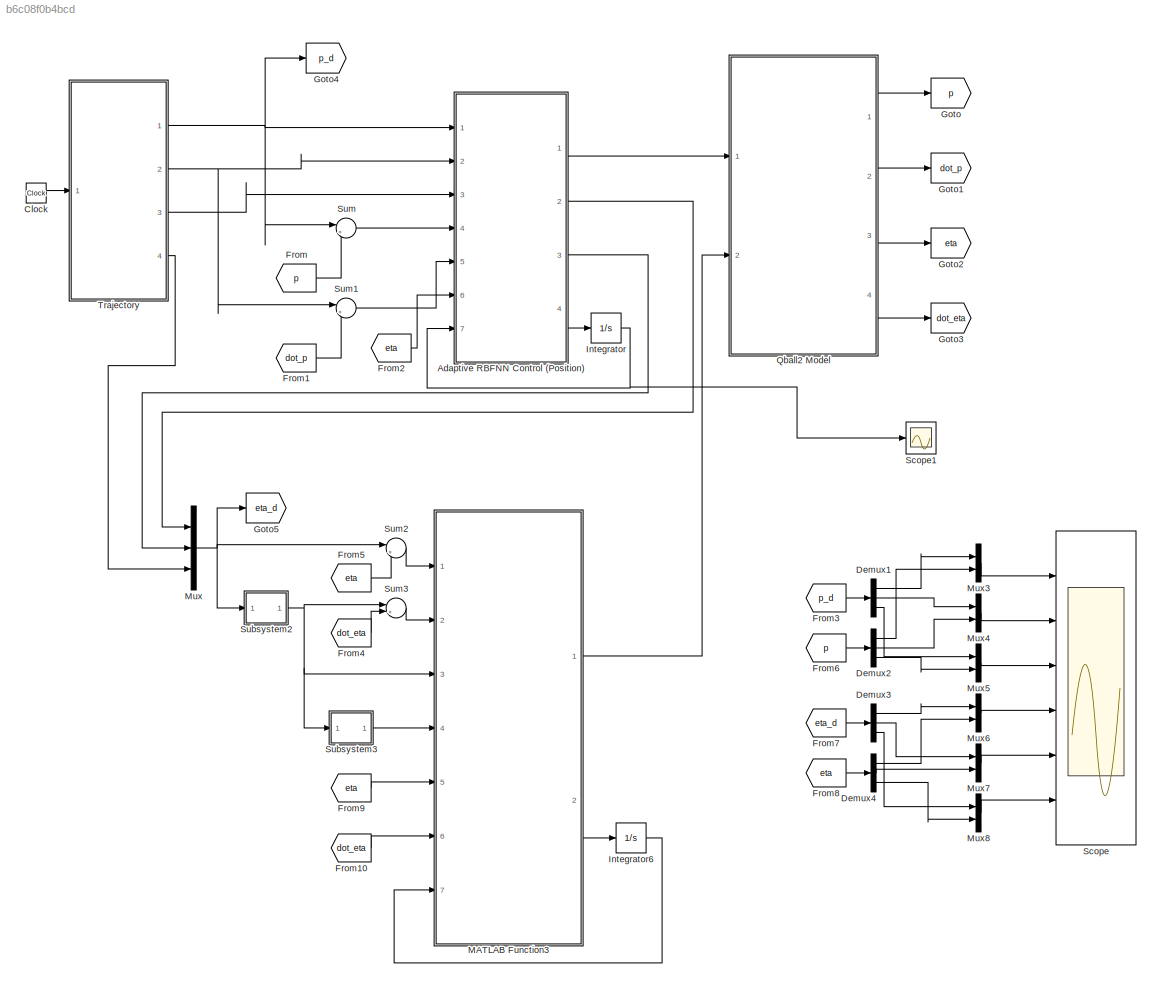
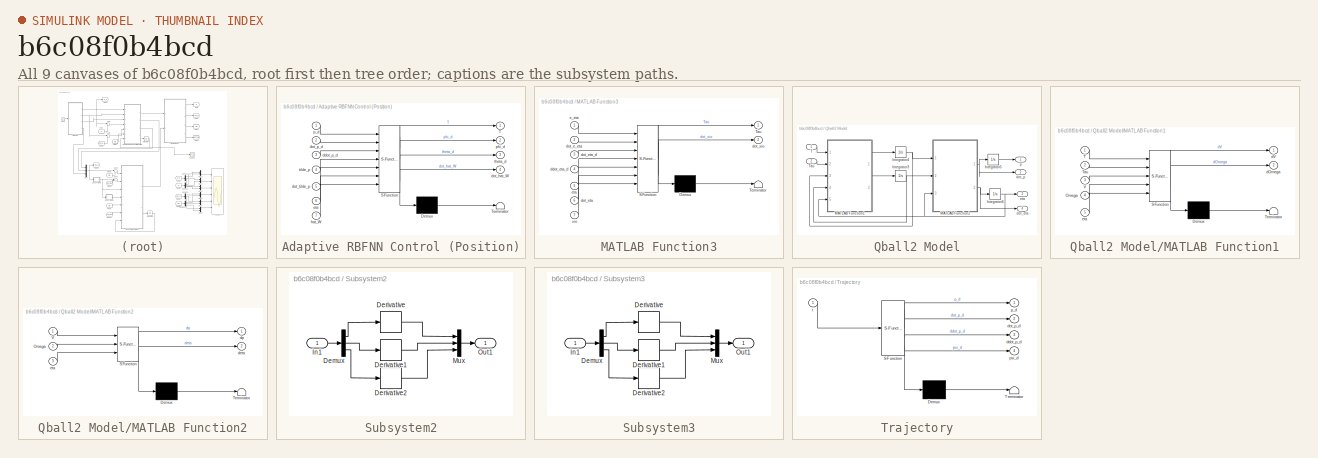
[diagram: thumbnail index - all 9 canvases of the model, root first then tree order]
MODEL slx_b6c08f0b4bcd
KIND model
CONFIG AbsTol = auto
CONFIG EnableMultiTasking = off
CONFIG FixedStep = 1e-3
CONFIG MaxStep = auto
CONFIG MinStep = auto
CONFIG RelTol = 1e-3
CONFIG SampleTimeConstraint = Unconstrained
CONFIG Solver = FixedStepAuto
CONFIG SolverName = FixedStepAuto
CONFIG StartTime = 0.0
CONFIG StopTime = 60
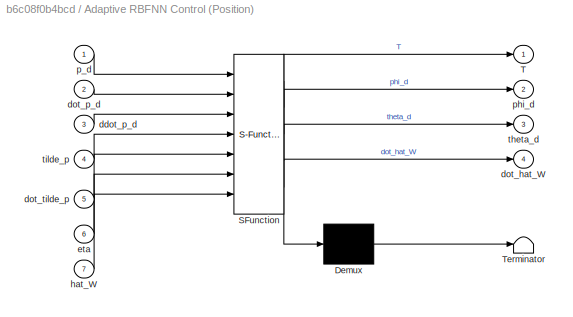
BLOCK [SubSystem] Adaptive RBFNN Control (Position)
  ErrorFcn = Stateflow.Translate.translate
  PermitHierarchicalResolution = ExplicitOnly
  Ports = [7, 4]
  RequestExecContextInheritance = off
  SFBlockType = MATLAB Function
  TreatAsAtomicUnit = on
BLOCK [Demux] Adaptive RBFNN Control (Position)/ Demux 
  Outputs = 1
  Ports = [1, 1]
BLOCK [S-Function] Adaptive RBFNN Control (Position)/ SFunction 
  EnableBusSupport = on
  FunctionName = sf_sfun
  PortCounts = [7 5]
  Ports = [7, 5]
  SFcnIsStateOwnerBlock = off
  SFunctionDeploymentMode = off
  Tag = Stateflow S-Function RBFNN_Position_PID_Attitude 2
BLOCK [Terminator] Adaptive RBFNN Control (Position)/ Terminator 
BLOCK [Outport] Adaptive RBFNN Control (Position)/T
  IconDisplay = Port number
BLOCK [Inport] Adaptive RBFNN Control (Position)/ddot_p_d
  IconDisplay = Port number
  Port = 3
BLOCK [Outport] Adaptive RBFNN Control (Position)/dot_hat_W
  IconDisplay = Port number
  Port = 4
BLOCK [Inport] Adaptive RBFNN Control (Position)/dot_p_d
  IconDisplay = Port number
  Port = 2
BLOCK [Inport] Adaptive RBFNN Control (Position)/dot_tilde_p
  IconDisplay = Port number
  Port = 5
BLOCK [Inport] Adaptive RBFNN Control (Position)/eta
  IconDisplay = Port number
  Port = 6
BLOCK [Inport] Adaptive RBFNN Control (Position)/hat_W
  IconDisplay = Port number
  Port = 7
BLOCK [Inport] Adaptive RBFNN Control (Position)/p_d
  IconDisplay = Port number
BLOCK [Outport] Adaptive RBFNN Control (Position)/phi_d
  IconDisplay = Port number
  Port = 2
BLOCK [Outport] Adaptive RBFNN Control (Position)/theta_d
  IconDisplay = Port number
  Port = 3
BLOCK [Inport] Adaptive RBFNN Control (Position)/tilde_p
  IconDisplay = Port number
  Port = 4
BLOCK [Clock] Clock
BLOCK [Demux] Demux1
  DisplayOption = bar
  Outputs = 3
  Ports = [1, 3]
BLOCK [Demux] Demux2
  DisplayOption = bar
  Outputs = 3
  Ports = [1, 3]
BLOCK [Demux] Demux3
  DisplayOption = bar
  Outputs = 3
  Ports = [1, 3]
BLOCK [Demux] Demux4
  DisplayOption = bar
  Outputs = 3
  Ports = [1, 3]
BLOCK [From] From
  GotoTag = p
  TagVisibility = global
BLOCK [From] From1
  GotoTag = dot_p
  TagVisibility = global
BLOCK [From] From10
  GotoTag = dot_eta
  TagVisibility = global
BLOCK [From] From2
  GotoTag = eta
  TagVisibility = global
BLOCK [From] From3
  GotoTag = p_d
  TagVisibility = global
BLOCK [From] From4
  GotoTag = dot_eta
  TagVisibility = global
BLOCK [From] From5
  GotoTag = eta
  TagVisibility = global
BLOCK [From] From6
  GotoTag = p
  TagVisibility = global
BLOCK [From] From7
  GotoTag = eta_d
  TagVisibility = global
BLOCK [From] From8
  GotoTag = eta
  TagVisibility = global
BLOCK [From] From9
  GotoTag = eta
  TagVisibility = global
BLOCK [Goto] Goto
  GotoTag = p
  TagVisibility = global
BLOCK [Goto] Goto1
  GotoTag = dot_p
  TagVisibility = global
BLOCK [Goto] Goto2
  GotoTag = eta
  TagVisibility = global
BLOCK [Goto] Goto3
  GotoTag = dot_eta
  TagVisibility = global
BLOCK [Goto] Goto4
  GotoTag = p_d
  TagVisibility = global
BLOCK [Goto] Goto5
  GotoTag = eta_d
  TagVisibility = global
BLOCK [Integrator] Integrator
  InitialCondition = 0.005*ones(7,3)
  Ports = [1, 1]
BLOCK [Integrator] Integrator6
  InitialCondition = [0;0;0]
  Ports = [1, 1]
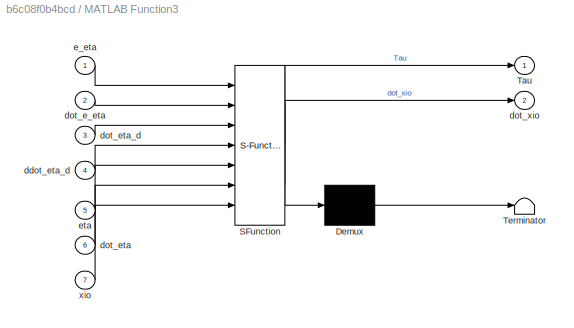
BLOCK [SubSystem] MATLAB Function3
  ErrorFcn = Stateflow.Translate.translate
  PermitHierarchicalResolution = ExplicitOnly
  Ports = [7, 2]
  RequestExecContextInheritance = off
  SFBlockType = MATLAB Function
  TreatAsAtomicUnit = on
BLOCK [Demux] MATLAB Function3/ Demux 
  Outputs = 1
  Ports = [1, 1]
BLOCK [S-Function] MATLAB Function3/ SFunction 
  EnableBusSupport = on
  FunctionName = sf_sfun
  PortCounts = [7 3]
  Ports = [7, 3]
  SFcnIsStateOwnerBlock = off
  SFunctionDeploymentMode = off
  Tag = Stateflow S-Function RBFNN_Position_PID_Attitude 4
BLOCK [Terminator] MATLAB Function3/ Terminator 
BLOCK [Outport] MATLAB Function3/Tau
  IconDisplay = Port number
BLOCK [Inport] MATLAB Function3/ddot_eta_d
  IconDisplay = Port number
  Port = 4
BLOCK [Inport] MATLAB Function3/dot_e_eta
  IconDisplay = Port number
  Port = 2
BLOCK [Inport] MATLAB Function3/dot_eta
  IconDisplay = Port number
  Port = 6
BLOCK [Inport] MATLAB Function3/dot_eta_d
  IconDisplay = Port number
  Port = 3
BLOCK [Outport] MATLAB Function3/dot_xio
  IconDisplay = Port number
  Port = 2
BLOCK [Inport] MATLAB Function3/e_eta
  IconDisplay = Port number
BLOCK [Inport] MATLAB Function3/eta
  IconDisplay = Port number
  Port = 5
BLOCK [Inport] MATLAB Function3/xio
  IconDisplay = Port number
  Port = 7
BLOCK [Mux] Mux
  DisplayOption = bar
  Inputs = 3
  Ports = [3, 1]
BLOCK [Mux] Mux3
  DisplayOption = bar
  Inputs = 2
  Ports = [2, 1]
BLOCK [Mux] Mux4
  DisplayOption = bar
  Inputs = 2
  Ports = [2, 1]
BLOCK [Mux] Mux5
  DisplayOption = bar
  Inputs = 2
  Ports = [2, 1]
BLOCK [Mux] Mux6
  DisplayOption = bar
  Inputs = 2
  Ports = [2, 1]
BLOCK [Mux] Mux7
  DisplayOption = bar
  Inputs = 2
  Ports = [2, 1]
BLOCK [Mux] Mux8
  DisplayOption = bar
  Inputs = 2
  Ports = [2, 1]
BLOCK [SubSystem] Qball2 Model
  Ports = [2, 4]
  RequestExecContextInheritance = off
BLOCK [Integrator] Qball2 Model/Integrator3
  InitialCondition = [0;0;0]
  Ports = [1, 1]
BLOCK [Integrator] Qball2 Model/Integrator4
  InitialCondition = [0;0;0]
  Ports = [1, 1]
BLOCK [Integrator] Qball2 Model/Integrator5
  InitialCondition = [0;0;0.3]
  LimitOutput = on
  LowerSaturationLimit = [-inf;-inf;0.3]
  Ports = [1, 1]
  UpperSaturationLimit = [inf;inf;inf]
BLOCK [Integrator] Qball2 Model/Integrator6
  InitialCondition = [0;0;0]
  Ports = [1, 1]
BLOCK [SubSystem] Qball2 Model/MATLAB Function1
  ErrorFcn = Stateflow.Translate.translate
  PermitHierarchicalResolution = ExplicitOnly
  Ports = [5, 2]
  RequestExecContextInheritance = off
  SFBlockType = MATLAB Function
  TreatAsAtomicUnit = on
BLOCK [Demux] Qball2 Model/MATLAB Function1/ Demux 
  Outputs = 1
  Ports = [1, 1]
BLOCK [S-Function] Qball2 Model/MATLAB Function1/ SFunction 
  EnableBusSupport = on
  FunctionName = sf_sfun
  PortCounts = [5 3]
  Ports = [5, 3]
  SFcnIsStateOwnerBlock = off
  SFunctionDeploymentMode = off
  Tag = Stateflow S-Function RBFNN_Position_PID_Attitude 6
BLOCK [Terminator] Qball2 Model/MATLAB Function1/ Terminator 
BLOCK [Inport] Qball2 Model/MATLAB Function1/Omega
  IconDisplay = Port number
  Port = 4
BLOCK [Inport] Qball2 Model/MATLAB Function1/T
  IconDisplay = Port number
BLOCK [Inport] Qball2 Model/MATLAB Function1/Tau
  IconDisplay = Port number
  Port = 2
BLOCK [Inport] Qball2 Model/MATLAB Function1/V
  IconDisplay = Port number
  Port = 3
BLOCK [Outport] Qball2 Model/MATLAB Function1/dOmega
  IconDisplay = Port number
  Port = 2
BLOCK [Outport] Qball2 Model/MATLAB Function1/dV
  IconDisplay = Port number
BLOCK [Inport] Qball2 Model/MATLAB Function1/eta
  IconDisplay = Port number
  Port = 5
BLOCK [SubSystem] Qball2 Model/MATLAB Function2
  ErrorFcn = Stateflow.Translate.translate
  PermitHierarchicalResolution = ExplicitOnly
  Ports = [3, 2]
  RequestExecContextInheritance = off
  SFBlockType = MATLAB Function
  TreatAsAtomicUnit = on
BLOCK [Demux] Qball2 Model/MATLAB Function2/ Demux 
  Outputs = 1
  Ports = [1, 1]
BLOCK [S-Function] Qball2 Model/MATLAB Function2/ SFunction 
  EnableBusSupport = on
  FunctionName = sf_sfun
  PortCounts = [3 3]
  Ports = [3, 3]
  SFcnIsStateOwnerBlock = off
  SFunctionDeploymentMode = off
  Tag = Stateflow S-Function RBFNN_Position_PID_Attitude 7
BLOCK [Terminator] Qball2 Model/MATLAB Function2/ Terminator 
BLOCK [Inport] Qball2 Model/MATLAB Function2/Omega
  IconDisplay = Port number
  Port = 2
BLOCK [Inport] Qball2 Model/MATLAB Function2/V
  IconDisplay = Port number
BLOCK [Outport] Qball2 Model/MATLAB Function2/deta
  IconDisplay = Port number
  Port = 2
BLOCK [Outport] Qball2 Model/MATLAB Function2/dp
  IconDisplay = Port number
BLOCK [Inport] Qball2 Model/MATLAB Function2/eta
  IconDisplay = Port number
  Port = 3
BLOCK [Inport] Qball2 Model/T
  IconDisplay = Port number
BLOCK [Inport] Qball2 Model/Tau
  IconDisplay = Port number
  Port = 2
BLOCK [Outport] Qball2 Model/dot_eta
  IconDisplay = Port number
  Port = 4
BLOCK [Outport] Qball2 Model/dot_p
  IconDisplay = Port number
  Port = 2
BLOCK [Outport] Qball2 Model/eta
  IconDisplay = Port number
  Port = 3
BLOCK [Outport] Qball2 Model/p
  IconDisplay = Port number
BLOCK [Scope] Scope
  Floating = off
  NumInputPorts = 6
  Ports = [6]
  ScopeSpecificationString = Simulink.scopes.TimeScopeBlockCfg('CurrentConfiguration', extmgr.ConfigurationSet(extmgr.Configuration('Core','General UI',true),extmgr.Configuration('Core','Source UI',true),extmgr.Configuration('Sources','WiredSimulink',true,'DataLoggingVariableName','ScopeData1'),extmgr.Configuration('Visuals','Time Domain',true,'SerializedDisplays',{struct('MinYLimReal','-0.6694','MaxYLimReal','0.67231','YLabe...<+4900ch>
BLOCK [Scope] Scope1
  Floating = off
  NumInputPorts = 1
  Ports = [1]
  ScopeSpecificationString = Simulink.scopes.TimeScopeBlockCfg('CurrentConfiguration', extmgr.ConfigurationSet(extmgr.Configuration('Core','General UI',true),extmgr.Configuration('Core','Source UI',true),extmgr.Configuration('Sources','WiredSimulink',true),extmgr.Configuration('Visuals','Time Domain',true,'SerializedDisplays',{struct('MinYLimReal','-0.58184','MaxYLimReal','1.13266','YLabelReal','','MinYLimMag','0.00000','MaxY...<+1700ch>
BLOCK [SubSystem] Subsystem2
  Ports = [1, 1]
  RequestExecContextInheritance = off
BLOCK [Demux] Subsystem2/Demux
  DisplayOption = bar
  Outputs = 3
  Ports = [1, 3]
BLOCK [Derivative] Subsystem2/Derivative
BLOCK [Derivative] Subsystem2/Derivative1
BLOCK [Derivative] Subsystem2/Derivative2
BLOCK [Inport] Subsystem2/In1
  IconDisplay = Port number
BLOCK [Mux] Subsystem2/Mux
  DisplayOption = bar
  Inputs = 3
  Ports = [3, 1]
BLOCK [Outport] Subsystem2/Out1
  IconDisplay = Port number
BLOCK [SubSystem] Subsystem3
  Ports = [1, 1]
  RequestExecContextInheritance = off
BLOCK [Demux] Subsystem3/Demux
  DisplayOption = bar
  Outputs = 3
  Ports = [1, 3]
BLOCK [Derivative] Subsystem3/Derivative
BLOCK [Derivative] Subsystem3/Derivative1
BLOCK [Derivative] Subsystem3/Derivative2
BLOCK [Inport] Subsystem3/In1
  IconDisplay = Port number
BLOCK [Mux] Subsystem3/Mux
  DisplayOption = bar
  Inputs = 3
  Ports = [3, 1]
BLOCK [Outport] Subsystem3/Out1
  IconDisplay = Port number
BLOCK [Sum] Sum
  IconShape = round
  InputSameDT = off
  Inputs = |+-
  OutDataTypeStr = Inherit: Inherit via internal rule
  Ports = [2, 1]
  SaturateOnIntegerOverflow = off
BLOCK [Sum] Sum1
  IconShape = round
  InputSameDT = off
  Inputs = |+-
  OutDataTypeStr = Inherit: Inherit via internal rule
  Ports = [2, 1]
  SaturateOnIntegerOverflow = off
BLOCK [Sum] Sum2
  IconShape = round
  InputSameDT = off
  Inputs = |+-
  OutDataTypeStr = Inherit: Inherit via internal rule
  Ports = [2, 1]
  SaturateOnIntegerOverflow = off
BLOCK [Sum] Sum3
  IconShape = round
  InputSameDT = off
  Inputs = |+-
  OutDataTypeStr = Inherit: Inherit via internal rule
  Ports = [2, 1]
  SaturateOnIntegerOverflow = off
BLOCK [SubSystem] Trajectory
  ErrorFcn = Stateflow.Translate.translate
  PermitHierarchicalResolution = ExplicitOnly
  Ports = [1, 4]
  RequestExecContextInheritance = off
  SFBlockType = MATLAB Function
  TreatAsAtomicUnit = on
BLOCK [Demux] Trajectory/ Demux 
  Outputs = 1
  Ports = [1, 1]
BLOCK [S-Function] Trajectory/ SFunction 
  EnableBusSupport = on
  FunctionName = sf_sfun
  PortCounts = [1 5]
  Ports = [1, 5]
  SFcnIsStateOwnerBlock = off
  SFunctionDeploymentMode = off
  Tag = Stateflow S-Function RBFNN_Position_PID_Attitude 1
BLOCK [Terminator] Trajectory/ Terminator 
BLOCK [Outport] Trajectory/ddot_p_d
  IconDisplay = Port number
  Port = 3
BLOCK [Outport] Trajectory/dot_p_d
  IconDisplay = Port number
  Port = 2
BLOCK [Outport] Trajectory/p_d
  IconDisplay = Port number
BLOCK [Outport] Trajectory/psi_d
  IconDisplay = Port number
  Port = 4
BLOCK [Inport] Trajectory/t
  IconDisplay = Port number
LINE Adaptive RBFNN Control (Position):1 -> Qball2 Model:1
LINE Adaptive RBFNN Control (Position):2 -> Mux:1
LINE Adaptive RBFNN Control (Position):3 -> Mux:2
LINE Adaptive RBFNN Control (Position):4 -> Integrator:1
LINE Clock:1 -> Trajectory:1
LINE Demux1:1 -> Mux3:1
LINE Demux1:2 -> Mux4:1
LINE Demux1:3 -> Mux5:1
LINE Demux2:1 -> Mux3:2
LINE Demux2:2 -> Mux4:2
LINE Demux2:3 -> Mux5:2
LINE Demux3:1 -> Mux6:1
LINE Demux3:2 -> Mux7:1
LINE Demux3:3 -> Mux8:1
LINE Demux4:1 -> Mux6:2
LINE Demux4:2 -> Mux7:2
LINE Demux4:3 -> Mux8:2
LINE From10:1 -> MATLAB Function3:6
LINE From1:1 -> Sum1:2
LINE From2:1 -> Adaptive RBFNN Control (Position):6
LINE From3:1 -> Demux1:1
LINE From4:1 -> Sum3:2
LINE From5:1 -> Sum2:2
LINE From6:1 -> Demux2:1
LINE From7:1 -> Demux3:1
LINE From8:1 -> Demux4:1
LINE From9:1 -> MATLAB Function3:5
LINE From:1 -> Sum:2
LINE Integrator6:1 -> MATLAB Function3:7
NET Integrator:1 -> Adaptive RBFNN Control (Position):7, Scope1:1
LINE MATLAB Function3:1 -> Qball2 Model:2
LINE MATLAB Function3:2 -> Integrator6:1
LINE Mux3:1 -> Scope:1
LINE Mux4:1 -> Scope:2
LINE Mux5:1 -> Scope:3
LINE Mux6:1 -> Scope:4
LINE Mux7:1 -> Scope:5
LINE Mux8:1 -> Scope:6
NET Mux:1 -> Goto5:1, Subsystem2:1, Sum2:1
NET Qball2 Model/Integrator3:1 -> Qball2 Model/MATLAB Function1:4, Qball2 Model/MATLAB Function2:2
NET Qball2 Model/Integrator4:1 -> Qball2 Model/MATLAB Function1:3, Qball2 Model/MATLAB Function2:1
LINE Qball2 Model/Integrator5:1 -> Qball2 Model/p:1
NET Qball2 Model/Integrator6:1 -> Qball2 Model/MATLAB Function1:5, Qball2 Model/MATLAB Function2:3, Qball2 Model/eta:1
LINE Qball2 Model/MATLAB Function1:1 -> Qball2 Model/Integrator4:1
LINE Qball2 Model/MATLAB Function1:2 -> Qball2 Model/Integrator3:1
NET Qball2 Model/MATLAB Function2:1 -> Qball2 Model/Integrator5:1, Qball2 Model/dot_p:1
NET Qball2 Model/MATLAB Function2:2 -> Qball2 Model/Integrator6:1, Qball2 Model/dot_eta:1
LINE Qball2 Model/T:1 -> Qball2 Model/MATLAB Function1:1
LINE Qball2 Model/Tau:1 -> Qball2 Model/MATLAB Function1:2
LINE Qball2 Model:1 -> Goto:1
LINE Qball2 Model:2 -> Goto1:1
LINE Qball2 Model:3 -> Goto2:1
LINE Qball2 Model:4 -> Goto3:1
LINE Subsystem2/Demux:1 -> Subsystem2/Derivative:1
LINE Subsystem2/Demux:2 -> Subsystem2/Derivative1:1
LINE Subsystem2/Demux:3 -> Subsystem2/Derivative2:1
LINE Subsystem2/Derivative1:1 -> Subsystem2/Mux:2
LINE Subsystem2/Derivative2:1 -> Subsystem2/Mux:3
LINE Subsystem2/Derivative:1 -> Subsystem2/Mux:1
LINE Subsystem2/In1:1 -> Subsystem2/Demux:1
LINE Subsystem2/Mux:1 -> Subsystem2/Out1:1
NET Subsystem2:1 -> MATLAB Function3:3, Subsystem3:1, Sum3:1
LINE Subsystem3/Demux:1 -> Subsystem3/Derivative:1
LINE Subsystem3/Demux:2 -> Subsystem3/Derivative1:1
LINE Subsystem3/Demux:3 -> Subsystem3/Derivative2:1
LINE Subsystem3/Derivative1:1 -> Subsystem3/Mux:2
LINE Subsystem3/Derivative2:1 -> Subsystem3/Mux:3
LINE Subsystem3/Derivative:1 -> Subsystem3/Mux:1
LINE Subsystem3/In1:1 -> Subsystem3/Demux:1
LINE Subsystem3/Mux:1 -> Subsystem3/Out1:1
LINE Subsystem3:1 -> MATLAB Function3:4
LINE Sum1:1 -> Adaptive RBFNN Control (Position):5
LINE Sum2:1 -> MATLAB Function3:1
LINE Sum3:1 -> MATLAB Function3:2
LINE Sum:1 -> Adaptive RBFNN Control (Position):4
NET Trajectory:1 -> Adaptive RBFNN Control (Position):1, Goto4:1, Sum:1
NET Trajectory:2 -> Adaptive RBFNN Control (Position):2, Sum1:1
LINE Trajectory:3 -> Adaptive RBFNN Control (Position):3
LINE Trajectory:4 -> Mux:3
note: NET lines group one-source signal fan-out (src -> all destinations, sorted); 1:1 wires keep LINE
CHART Trajectory states=1 transitions=1
  STATE_LABEL 'eML_blk_kernel()'
  STATE_LABEL 'SCRIPT:\nfunction [p_d,dot_p_d,ddot_p_d,psi_d] = fcn(t)\n\nx_amp = 0.5;\ny_amp = 1;\n% z_amp = 0;\n\nx_frec = 2*pi/4;\ny_frec = 2*pi/8;\n% z_frec = 0;\n\nz_b = 1;\n\np_d = [x_amp*sin(x_frec*t);\n       y_amp*cos(y_frec*t);\n       z_b];\n   \ndot_p_d = [x_frec*x_amp*cos(x_frec*t);\n           y_frec*y_amp*-sin(y_frec*t);\n           0];\n       \nddot_p_d = [x_frec^2*x_amp*-sin(x_frec*t);\n            y_frec^2*y_amp*-c...<+58ch>'
CHART Adaptive RBFNN Control
(Position) states=1 transitions=1
  STATE_LABEL 'eML_blk_kernel()'
  STATE_LABEL "SCRIPT:\nfunction [T, phi_d,theta_d,dot_hat_W] = fcn(p_d, dot_p_d, ddot_p_d, tilde_p, dot_tilde_p, eta, hat_W)\nm = 1.79;\ng = 9.81;\n%% RBFNN parameters\nc      = [-1.5,-1,-0.5,0,0.5,1,1.5];\nJ      = length(c);\nsigma  = 5*ones(J,1);\nLambda = 0.85;\nA      = 10;\nKv     = 12;\n%%\nphi   = eta(1);\ntheta = eta(2);\npsi   = eta(3);\n\nM  = diag([1/m 1/m cos(phi)*cos(theta)/m]);\ne3 = [0;0;1];\n\nXin = [tilde_p' dot...<+374ch>"
CHART MATLAB Function3 states=1 transitions=1
  STATE_LABEL 'eML_blk_kernel()'
  STATE_LABEL 'SCRIPT:\nfunction [Tau, dot_xio] = fcn(e_eta, dot_e_eta, dot_eta_d, ddot_eta_d, eta, dot_eta, xio)\n\n% Kpo = 8*diag([1;1;1]);\n% Kdo = 0.2*diag([1;1;1]);\n% Kio = 0.05*diag([1;1;1]);\n\nKpo = 2*diag([1;1;1]);\nKdo = 0.5*diag([1;1;1]);\nKio = 0.015*diag([1;1;1]);\n\nalpha = 1;\nbeta  = 1;\n\nIxx = 0.03;\nIyy = 0.03;\nIzz = 0.04;\n\nphi   = eta(1);\ntheta = eta(2);\n\nW = [1 sin(phi)*tan(theta) cos(phi)*tan(theta)\n    ...<+858ch>'
CHART Qball2 Model/MATLAB Function1 states=1 transitions=1
  STATE_LABEL 'eML_blk_kernel()'
  STATE_LABEL 'SCRIPT:\nfunction [dV,dOmega] = fcn(T,Tau,V,Omega,eta)\n\n%  TTA = [1.7613 %Parametros identificados 1\n%     0.0128\n%     0.0151\n%     0.0024];\n\n%  TTA = [1.7874 %Parametros identificados 2\n%     0.0156\n%     0.0186\n%     0.0010];\n\n%  TTA = [1.7917 %Parametros identificados 3\n%     0.0140\n%     0.0148\n%     0.0013];\n\n TTA = [1.79 %Parametros fabricante\n    0.03\n    0.03\n    0.04];\n\nTAUphi = Tau(1);\nT...<+501ch>'
CHART Qball2 Model/MATLAB Function2 states=1 transitions=1
  STATE_LABEL 'eML_blk_kernel()'
  STATE_LABEL 'SCRIPT:\nfunction [dp,deta] = fcn(V,Omega,eta)\n\nphi = eta(1);\ntta = eta(2);\npsi = eta(3);\n\nR = [cos(psi)*cos(tta)  -sin(psi)*cos(phi)+cos(psi)*sin(tta)*sin(phi)   sin(psi)*sin(phi)+cos(psi)*cos(phi)*sin(tta)\n     sin(psi)*cos(tta)   cos(psi)*cos(phi)+sin(phi)*sin(tta)*sin(psi)   sin(tta)*sin(psi)*cos(phi)-cos(psi)*sin(phi)\n     -sin(tta)           cos(tta)*sin(phi)                              cos(...<+176ch>'
